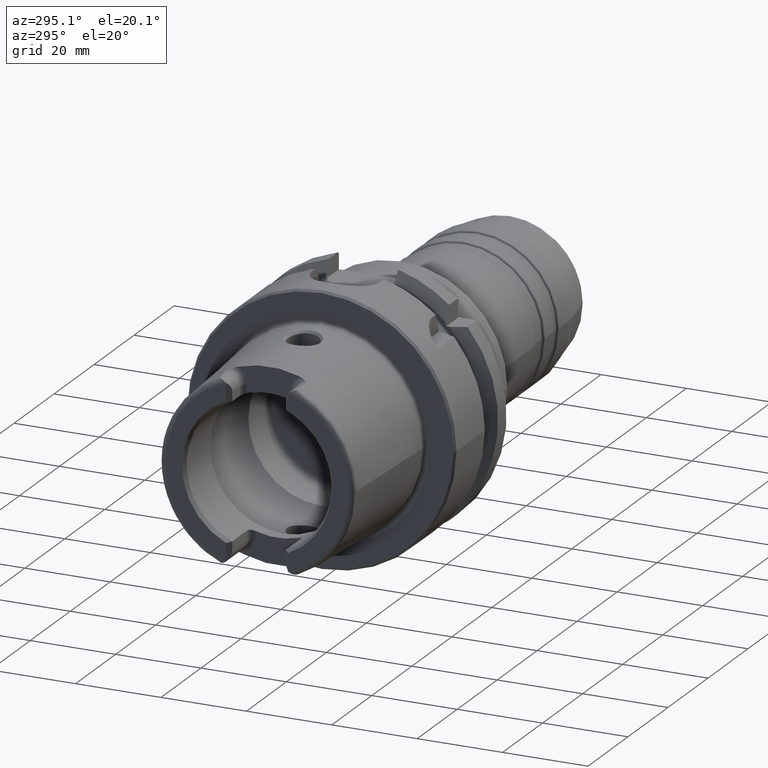
[diagram: clean part render]
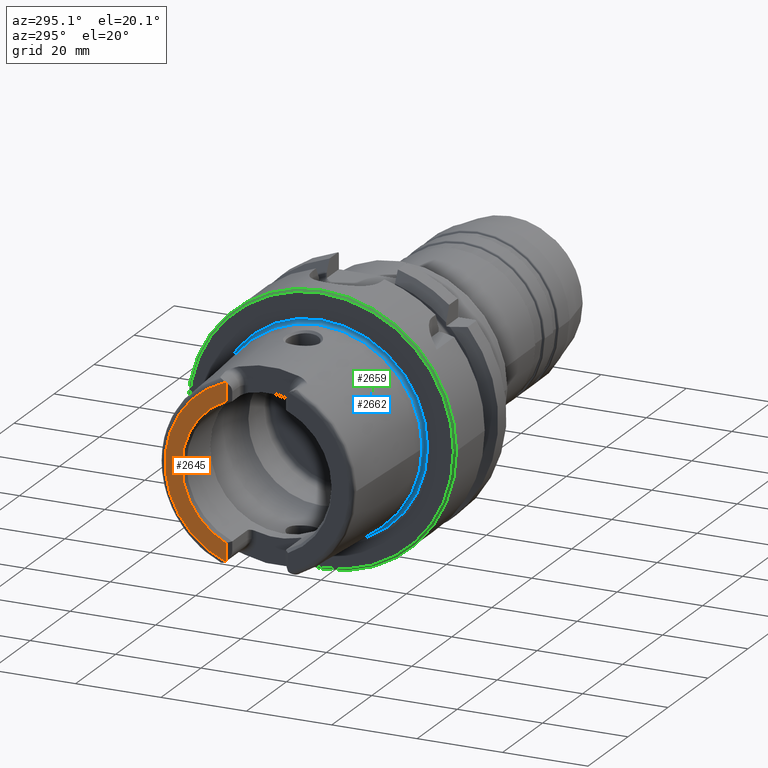
[diagram: same view with three faces highlighted in distinct colors, each labeled with its STEP entity id]
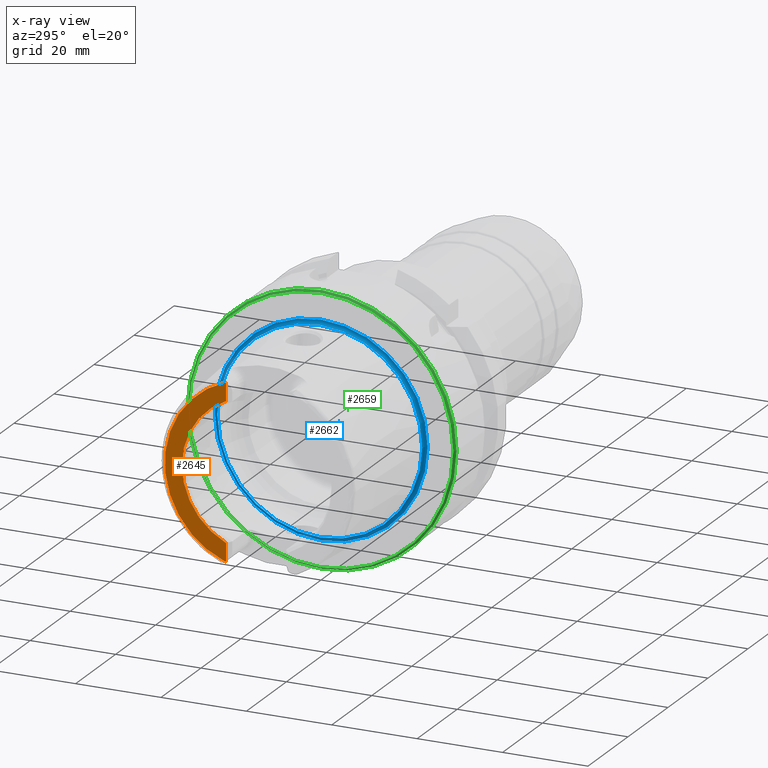
[diagram: x-ray of the same camera — body ghosted, the three highlighted faces saturated]
A machine part, auxiliary view with three faces highlighted in distinct colors.
The next image is the same camera in x-ray (body ghosted, the three faces saturated) — at least one of them is partly hidden behind the body in this view.
Their STEP definitions:

[orange] entity #2645 — the highlighted planar face has unit normal (-1, 0, 0).
#197=PLANE('',#3001);
#318=FACE_OUTER_BOUND('',#460,.T.);
#460=EDGE_LOOP('',(#2382,#2383,#2384,#2385,#2386,#2387));
#511=LINE('',#4237,#626);
#521=LINE('',#4330,#636);
#626=VECTOR('',#3396,10.);
#636=VECTOR('',#3434,10.);
#824=CIRCLE('',#2842,2.88);
#830=CIRCLE('',#2857,2.88);
#905=CIRCLE('',#3000,17.5773502691896);
#906=CIRCLE('',#3002,21.5760400159857);
#1052=VERTEX_POINT('',#4230);
#1055=VERTEX_POINT('',#4235);
#1058=VERTEX_POINT('',#4245);
#1073=VERTEX_POINT('',#4327);
#1074=VERTEX_POINT('',#4329);
#1079=VERTEX_POINT('',#4348);
#1380=EDGE_CURVE('',#1055,#1052,#511,.T.);
#1384=EDGE_CURVE('',#1058,#1052,#824,.T.);
#1402=EDGE_CURVE('',#1073,#1074,#521,.T.);
#1409=EDGE_CURVE('',#1073,#1079,#830,.T.);
#1613=EDGE_CURVE('',#1074,#1055,#905,.T.);
#1614=EDGE_CURVE('',#1058,#1079,#906,.T.);
#2382=ORIENTED_EDGE('',*,*,#1380,.F.);
#2383=ORIENTED_EDGE('',*,*,#1613,.F.);
#2384=ORIENTED_EDGE('',*,*,#1402,.F.);
#2385=ORIENTED_EDGE('',*,*,#1409,.T.);
#2386=ORIENTED_EDGE('',*,*,#1614,.F.);
#2387=ORIENTED_EDGE('',*,*,#1384,.T.);
#2645=ADVANCED_FACE('',(#318),#197,.T.);
#2842=AXIS2_PLACEMENT_3D('',#4246,#3404,#3405);
#2857=AXIS2_PLACEMENT_3D('',#4361,#3443,#3444);
#3000=AXIS2_PLACEMENT_3D('',#5495,#3794,#3795);
#3001=AXIS2_PLACEMENT_3D('',#5496,#3796,#3797);
#3002=AXIS2_PLACEMENT_3D('',#5497,#3798,#3799);
#3396=DIRECTION('',(0.,0.,-1.));
#3404=DIRECTION('center_axis',(-1.,0.,0.));
#3405=DIRECTION('ref_axis',(0.,-0.453346760926793,0.891334232685576));
#3434=DIRECTION('',(0.,1.58830189502884E-16,-1.));
#3443=DIRECTION('center_axis',(-1.,0.,0.));
#3444=DIRECTION('ref_axis',(0.,1.,0.));
#3794=DIRECTION('center_axis',(-1.,0.,0.));
#3795=DIRECTION('ref_axis',(0.,-1.,0.));
#3796=DIRECTION('center_axis',(-1.,0.,0.));
#3797=DIRECTION('ref_axis',(0.,0.,1.));
#3798=DIRECTION('center_axis',(1.,0.,0.));
#3799=DIRECTION('ref_axis',(0.,0.,-1.));
#4230=CARTESIAN_POINT('',(-32.,7.27,-20.1717424229271));
#4235=CARTESIAN_POINT('',(-32.,7.27,-16.003447831195));
#4237=CARTESIAN_POINT('',(-32.,7.27,-5.5));
#4245=CARTESIAN_POINT('',(-32.,7.39118810947246,-20.2705658801576));
#4246=CARTESIAN_POINT('Origin',(-32.,9.15,-17.99));
#4327=CARTESIAN_POINT('',(-32.,7.27,20.1717424229271));
#4329=CARTESIAN_POINT('',(-32.,7.27,16.003447831195));
#4330=CARTESIAN_POINT('',(-32.,7.27,8.995));
#4348=CARTESIAN_POINT('',(-32.,7.39118810947246,20.2705658801576));
#4361=CARTESIAN_POINT('Origin',(-32.,9.15,17.99));
#5495=CARTESIAN_POINT('Origin',(-32.,0.,0.));
#5496=CARTESIAN_POINT('Origin',(-32.,21.5760400159857,0.));
#5497=CARTESIAN_POINT('Origin',(-32.,0.,0.));

[blue] entity #2662 — the highlighted toroidal blend (fillet) surface has major radius 24.8204 mm and minor (blend) radius 0.8 mm.
#150=TOROIDAL_SURFACE('',#3047,24.8204308617234,0.8);
#335=FACE_OUTER_BOUND('',#479,.T.);
#479=EDGE_LOOP('',(#2484,#2485,#2486,#2487,#2488,#2489,#2490,#2491));
#923=CIRCLE('',#3031,24.9317693424915);
#924=CIRCLE('',#3032,24.9317693424915);
#927=CIRCLE('',#3035,24.9317693424915);
#932=CIRCLE('',#3044,24.0204308617234);
#933=CIRCLE('',#3045,24.0204308617234);
#934=CIRCLE('',#3046,24.0204308617234);
#935=CIRCLE('',#3048,0.8);
#1217=VERTEX_POINT('',#5539);
#1218=VERTEX_POINT('',#5540);
#1219=VERTEX_POINT('',#5542);
#1226=VERTEX_POINT('',#5564);
#1227=VERTEX_POINT('',#5565);
#1228=VERTEX_POINT('',#5567);
#1633=EDGE_CURVE('',#1217,#1218,#923,.T.);
#1634=EDGE_CURVE('',#1218,#1219,#924,.T.);
#1638=EDGE_CURVE('',#1219,#1217,#927,.T.);
#1645=EDGE_CURVE('',#1226,#1227,#932,.T.);
#1646=EDGE_CURVE('',#1228,#1226,#933,.T.);
#1648=EDGE_CURVE('',#1227,#1228,#934,.T.);
#1649=EDGE_CURVE('',#1227,#1218,#935,.T.);
#2484=ORIENTED_EDGE('',*,*,#1645,.T.);
#2485=ORIENTED_EDGE('',*,*,#1649,.T.);
#2486=ORIENTED_EDGE('',*,*,#1633,.F.);
#2487=ORIENTED_EDGE('',*,*,#1638,.F.);
#2488=ORIENTED_EDGE('',*,*,#1634,.F.);
#2489=ORIENTED_EDGE('',*,*,#1649,.F.);
#2490=ORIENTED_EDGE('',*,*,#1648,.T.);
#2491=ORIENTED_EDGE('',*,*,#1646,.T.);
#2662=ADVANCED_FACE('',(#335),#150,.F.);
#3031=AXIS2_PLACEMENT_3D('',#5541,#3858,#3859);
#3032=AXIS2_PLACEMENT_3D('',#5543,#3860,#3861);
#3035=AXIS2_PLACEMENT_3D('',#5549,#3867,#3868);
#3044=AXIS2_PLACEMENT_3D('',#5566,#3887,#3888);
#3045=AXIS2_PLACEMENT_3D('',#5568,#3889,#3890);
#3046=AXIS2_PLACEMENT_3D('',#5570,#3892,#3893);
#3047=AXIS2_PLACEMENT_3D('',#5571,#3894,#3895);
#3048=AXIS2_PLACEMENT_3D('',#5572,#3896,#3897);
#3858=DIRECTION('center_axis',(1.,0.,0.));
#3859=DIRECTION('ref_axis',(0.,0.,-1.));
#3860=DIRECTION('center_axis',(1.,0.,0.));
#3861=DIRECTION('ref_axis',(0.,0.,-1.));
#3867=DIRECTION('center_axis',(1.,0.,0.));
#3868=DIRECTION('ref_axis',(0.,0.,-1.));
#3887=DIRECTION('center_axis',(1.,0.,0.));
#3888=DIRECTION('ref_axis',(0.,0.,-1.));
#3889=DIRECTION('center_axis',(1.,0.,0.));
#3890=DIRECTION('ref_axis',(0.,0.,-1.));
#3892=DIRECTION('center_axis',(1.,0.,0.));
#3893=DIRECTION('ref_axis',(0.,0.,-1.));
#3894=DIRECTION('center_axis',(1.,0.,0.));
#3895=DIRECTION('ref_axis',(0.,0.,-1.));
#3896=DIRECTION('center_axis',(0.,-1.,-1.22464679914735E-16));
#3897=DIRECTION('ref_axis',(0.,-1.22464679914735E-16,1.));
#5539=CARTESIAN_POINT('',(0.0922144549932569,24.9317693424915,0.));
#5540=CARTESIAN_POINT('',(0.0922144549932569,-3.05326115223623E-15,24.9317693424915));
#5541=CARTESIAN_POINT('Origin',(0.0922144549932569,0.,0.));
#5542=CARTESIAN_POINT('',(0.092214454993257,-24.9317693424915,-3.05326115223623E-15));
#5543=CARTESIAN_POINT('Origin',(0.0922144549932569,0.,0.));
#5549=CARTESIAN_POINT('Origin',(0.0922144549932569,0.,0.));
#5564=CARTESIAN_POINT('',(-0.7,24.0204308617234,0.));
#5565=CARTESIAN_POINT('',(-0.7,-2.94165437689499E-15,24.0204308617234));
#5566=CARTESIAN_POINT('Origin',(-0.7,0.,0.));
#5567=CARTESIAN_POINT('',(-0.7,-24.0204308617234,-2.94165437689499E-15));
#5568=CARTESIAN_POINT('Origin',(-0.7,0.,0.));
#5570=CARTESIAN_POINT('Origin',(-0.7,0.,0.));
#5571=CARTESIAN_POINT('Origin',(-0.7,0.,0.));
#5572=CARTESIAN_POINT('Origin',(-0.7,-3.03962612082678E-15,24.8204308617234));

[green] entity #2659 — the highlighted conical surface has half-angle 45 deg.
#114=CONICAL_SURFACE('',#3039,31.25,0.785398163397447);
#332=FACE_OUTER_BOUND('',#476,.T.);
#476=EDGE_LOOP('',(#2465,#2466,#2467,#2468,#2469,#2470));
#592=LINE('',#5556,#707);
#707=VECTOR('',#3877,31.25);
#883=CIRCLE('',#2960,31.5);
#884=CIRCLE('',#2961,31.5);
#928=CIRCLE('',#3037,31.);
#929=CIRCLE('',#3038,31.);
#1192=VERTEX_POINT('',#5393);
#1193=VERTEX_POINT('',#5395);
#1222=VERTEX_POINT('',#5551);
#1223=VERTEX_POINT('',#5552);
#1580=EDGE_CURVE('',#1192,#1193,#883,.T.);
#1581=EDGE_CURVE('',#1193,#1192,#884,.T.);
#1639=EDGE_CURVE('',#1222,#1223,#928,.T.);
#1640=EDGE_CURVE('',#1223,#1222,#929,.T.);
#1641=EDGE_CURVE('',#1192,#1223,#592,.T.);
#2465=ORIENTED_EDGE('',*,*,#1581,.F.);
#2466=ORIENTED_EDGE('',*,*,#1580,.F.);
#2467=ORIENTED_EDGE('',*,*,#1641,.T.);
#2468=ORIENTED_EDGE('',*,*,#1640,.T.);
#2469=ORIENTED_EDGE('',*,*,#1639,.T.);
#2470=ORIENTED_EDGE('',*,*,#1641,.F.);
#2659=ADVANCED_FACE('',(#332),#114,.T.);
#2960=AXIS2_PLACEMENT_3D('',#5396,#3707,#3708);
#2961=AXIS2_PLACEMENT_3D('',#5397,#3709,#3710);
#3037=AXIS2_PLACEMENT_3D('',#5553,#3871,#3872);
#3038=AXIS2_PLACEMENT_3D('',#5554,#3873,#3874);
#3039=AXIS2_PLACEMENT_3D('',#5555,#3875,#3876);
#3707=DIRECTION('center_axis',(1.,0.,0.));
#3708=DIRECTION('ref_axis',(0.,0.,-1.));
#3709=DIRECTION('center_axis',(1.,0.,0.));
#3710=DIRECTION('ref_axis',(0.,0.,-1.));
#3871=DIRECTION('center_axis',(1.,0.,0.));
#3872=DIRECTION('ref_axis',(0.,0.,-1.));
#3873=DIRECTION('center_axis',(1.,0.,0.));
#3874=DIRECTION('ref_axis',(0.,0.,-1.));
#3875=DIRECTION('center_axis',(1.,0.,0.));
#3876=DIRECTION('ref_axis',(0.,1.,0.));
#3877=DIRECTION('',(-0.707106781186549,0.707106781186546,8.65956056235492E-17));
#5393=CARTESIAN_POINT('',(0.5,-31.5,-3.85763741731416E-15));
#5395=CARTESIAN_POINT('',(0.5,31.5,0.));
#5396=CARTESIAN_POINT('Origin',(0.5,0.,0.));
#5397=CARTESIAN_POINT('Origin',(0.5,0.,0.));
#5551=CARTESIAN_POINT('',(0.,31.,0.));
#5552=CARTESIAN_POINT('',(-5.89805981832114E-16,-31.,-3.7964050773568E-15));
#5553=CARTESIAN_POINT('Origin',(0.,0.,0.));
#5554=CARTESIAN_POINT('Origin',(0.,0.,0.));
#5555=CARTESIAN_POINT('Origin',(0.25,0.,0.));
#5556=CARTESIAN_POINT('',(0.25,-31.25,-3.82702124733548E-15));